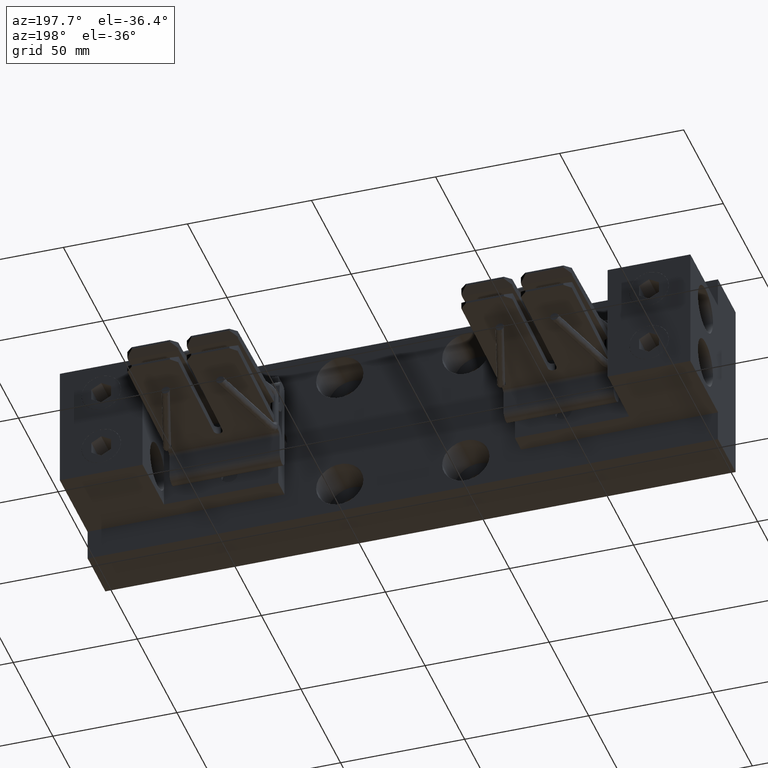
[diagram: clean part render]
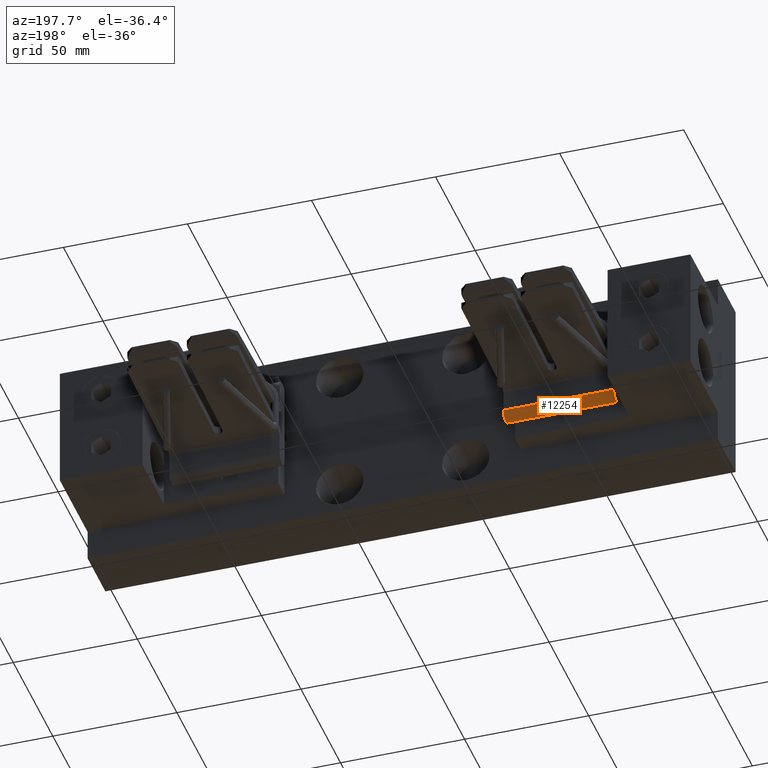
[diagram: same view with one face highlighted and labeled with its STEP entity id]
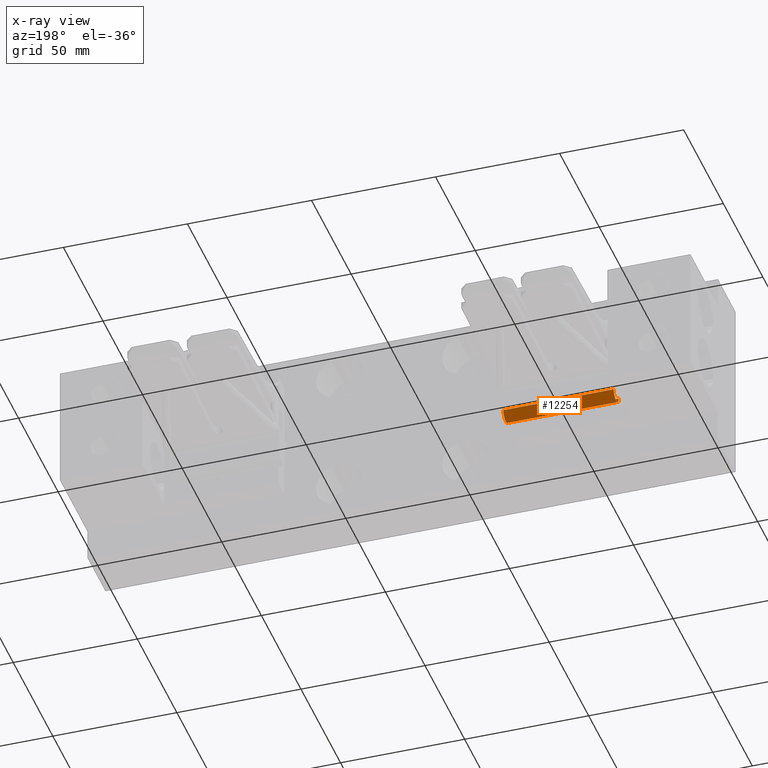
[diagram: x-ray of the same camera — body ghosted, the highlighted face saturated]
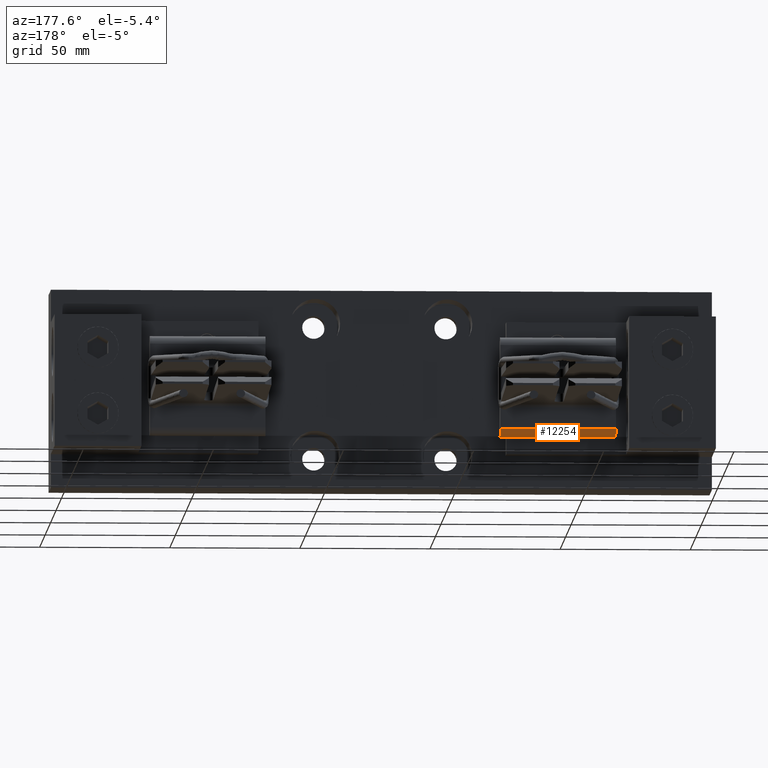
[diagram: same view with one face highlighted and labeled with its STEP entity id]
A machine part, auxiliary view. The second image highlights one B-rep face of the part: STEP entity #12254.
The next image is the same camera in x-ray: the body ghosted, the highlighted face saturated — about 0% of this face is hidden behind the body in this view.
A second angle (auxiliary view) of the same face is appended — the face is thin or edge-on in the first view.
In plain terms, the highlighted cylindrical surface (edge-blend (fillet) strip) has radius 3.175 mm, axis along (-1, -0, -0).
Its self-contained STEP definition (entity closure, byte-faithful):
#208 = AXIS2_PLACEMENT_3D ( 'NONE', #18233, #21987, #7060 ) ;
#969 = AXIS2_PLACEMENT_3D ( 'NONE', #13327, #2198, #15266 ) ;
#1888 = ORIENTED_EDGE ( 'NONE', *, *, #11048, .T. ) ;
#2198 = DIRECTION ( 'NONE',  ( 1.000000000000000000, 0.0000000000000000000, 0.0000000000000000000 ) ) ;
#2824 = VERTEX_POINT ( 'NONE', #10135 ) ;
#4175 = CARTESIAN_POINT ( 'NONE',  ( 3.227000000000000800, 0.3120000000000001100, -0.6315000000000000600 ) ) ;
#5301 = ORIENTED_EDGE ( 'NONE', *, *, #22820, .F. ) ;
#6110 = DIRECTION ( 'NONE',  ( -1.000000000000000000, -0.0000000000000000000, -0.0000000000000000000 ) ) ;
#6508 = VECTOR ( 'NONE', #6110, 39.37007874015748100 ) ;
#7060 = DIRECTION ( 'NONE',  ( 0.0000000000000000000, 0.0000000000000000000, 1.000000000000000000 ) ) ;
#8019 = CARTESIAN_POINT ( 'NONE',  ( 3.227000000000000800, 0.5620000000000001700, -0.6315000000000000600 ) ) ;
#8308 = CYLINDRICAL_SURFACE ( 'NONE', #208, 0.1250000000000000300 ) ;
#9881 = EDGE_CURVE ( 'NONE', #21220, #2824, #14107, .T. ) ;
#10135 = CARTESIAN_POINT ( 'NONE',  ( 1.477000000000000800, 0.5620000000000001700, -0.6315000000000000600 ) ) ;
#10520 = DIRECTION ( 'NONE',  ( 1.000000000000000000, 0.0000000000000000000, 0.0000000000000000000 ) ) ;
#10692 = ORIENTED_EDGE ( 'NONE', *, *, #18855, .T. ) ;
#11048 = EDGE_CURVE ( 'NONE', #24087, #23727, #16986, .T. ) ;
#11492 = FACE_OUTER_BOUND ( 'NONE', #14682, .T. ) ;
#12254 = ADVANCED_FACE ( 'NONE', ( #11492 ), #8308, .T. ) ;
#13327 = CARTESIAN_POINT ( 'NONE',  ( 3.227000000000000800, 0.4370000000000002800, -0.6315000000000000600 ) ) ;
#14107 = LINE ( 'NONE', #8019, #6508 ) ;
#14174 = CARTESIAN_POINT ( 'NONE',  ( 3.227000000000000800, 0.3120000000000001100, -0.6315000000000000600 ) ) ;
#14587 = CIRCLE ( 'NONE', #18887, 0.1250000000000000300 ) ;
#14682 = EDGE_LOOP ( 'NONE', ( #10692, #19556, #5301, #1888 ) ) ;
#15266 = DIRECTION ( 'NONE',  ( 0.0000000000000000000, 0.0000000000000000000, -1.000000000000000000 ) ) ;
#16986 = LINE ( 'NONE', #4175, #22475 ) ;
#17418 = CARTESIAN_POINT ( 'NONE',  ( 3.227000000000000800, 0.5620000000000001700, -0.6315000000000000600 ) ) ;
#18233 = CARTESIAN_POINT ( 'NONE',  ( 3.227000000000000800, 0.4370000000000002800, -0.6315000000000000600 ) ) ;
#18855 = EDGE_CURVE ( 'NONE', #23727, #2824, #14587, .T. ) ;
#18887 = AXIS2_PLACEMENT_3D ( 'NONE', #21804, #10520, #23747 ) ;
#19301 = CIRCLE ( 'NONE', #969, 0.1250000000000000300 ) ;
#19556 = ORIENTED_EDGE ( 'NONE', *, *, #9881, .F. ) ;
#20947 = CARTESIAN_POINT ( 'NONE',  ( 1.477000000000000800, 0.3120000000000001100, -0.6315000000000000600 ) ) ;
#21220 = VERTEX_POINT ( 'NONE', #17418 ) ;
#21804 = CARTESIAN_POINT ( 'NONE',  ( 1.477000000000000800, 0.4370000000000002800, -0.6315000000000000600 ) ) ;
#21987 = DIRECTION ( 'NONE',  ( -1.000000000000000000, -0.0000000000000000000, -0.0000000000000000000 ) ) ;
#22475 = VECTOR ( 'NONE', #22653, 39.37007874015748100 ) ;
#22653 = DIRECTION ( 'NONE',  ( -1.000000000000000000, -0.0000000000000000000, -0.0000000000000000000 ) ) ;
#22820 = EDGE_CURVE ( 'NONE', #24087, #21220, #19301, .T. ) ;
#23727 = VERTEX_POINT ( 'NONE', #20947 ) ;
#23747 = DIRECTION ( 'NONE',  ( 0.0000000000000000000, 0.0000000000000000000, -1.000000000000000000 ) ) ;
#24087 = VERTEX_POINT ( 'NONE', #14174 ) ;